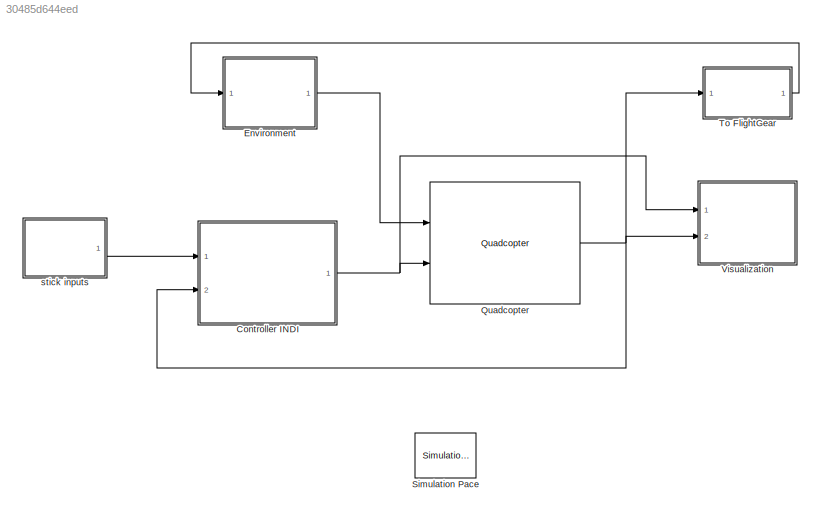
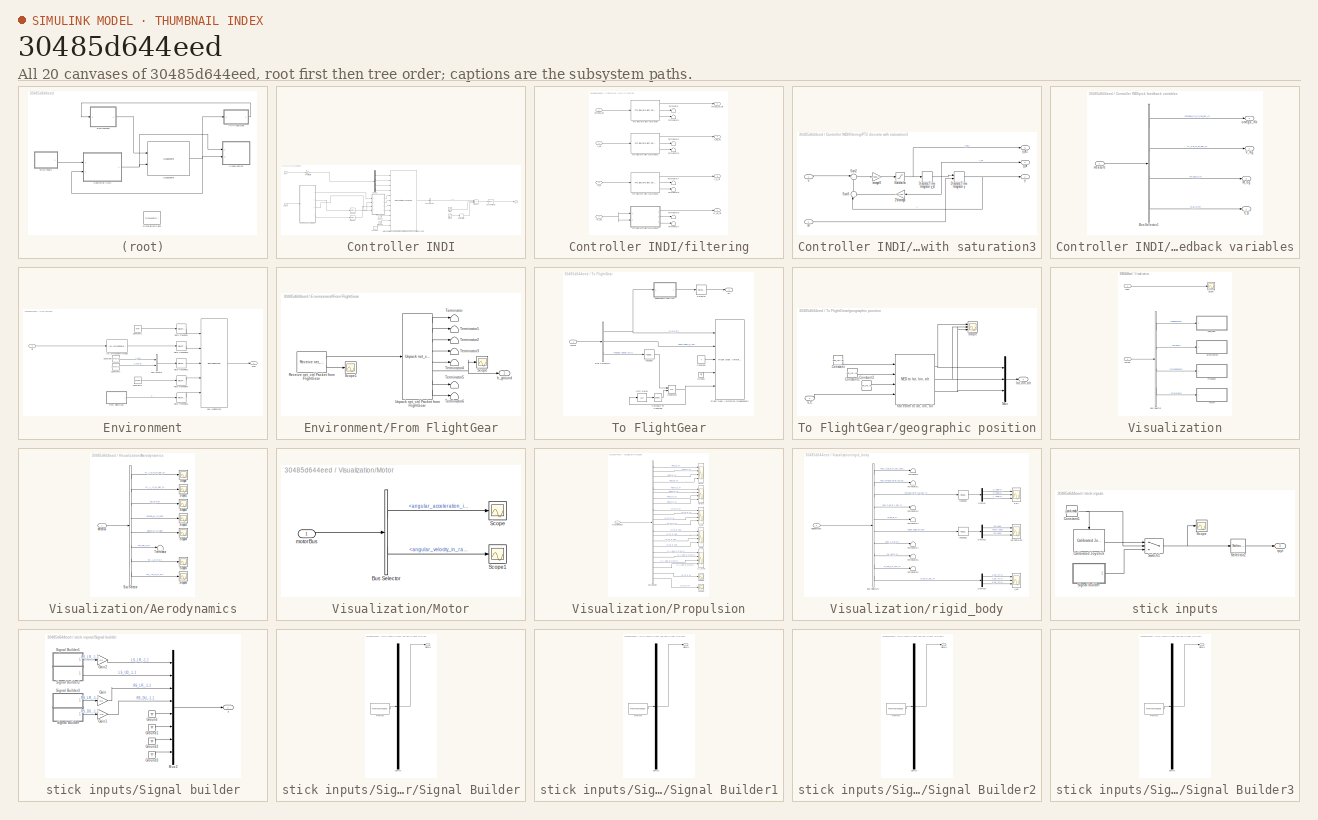
[diagram: thumbnail index - all 20 canvases of the model, root first then tree order]
MODEL slx_30485d644eed
KIND model
CONFIG AbsTol = auto
CONFIG EnableMultiTasking = on
CONFIG FixedStep = sample_time
CONFIG MaxStep = auto
CONFIG MinStep = auto
CONFIG RelTol = 1e-4
CONFIG SampleTimeConstraint = Unconstrained
CONFIG Solver = ode23
CONFIG SolverName = ode23
CONFIG StartTime = 0.0
CONFIG StopTime = 1000
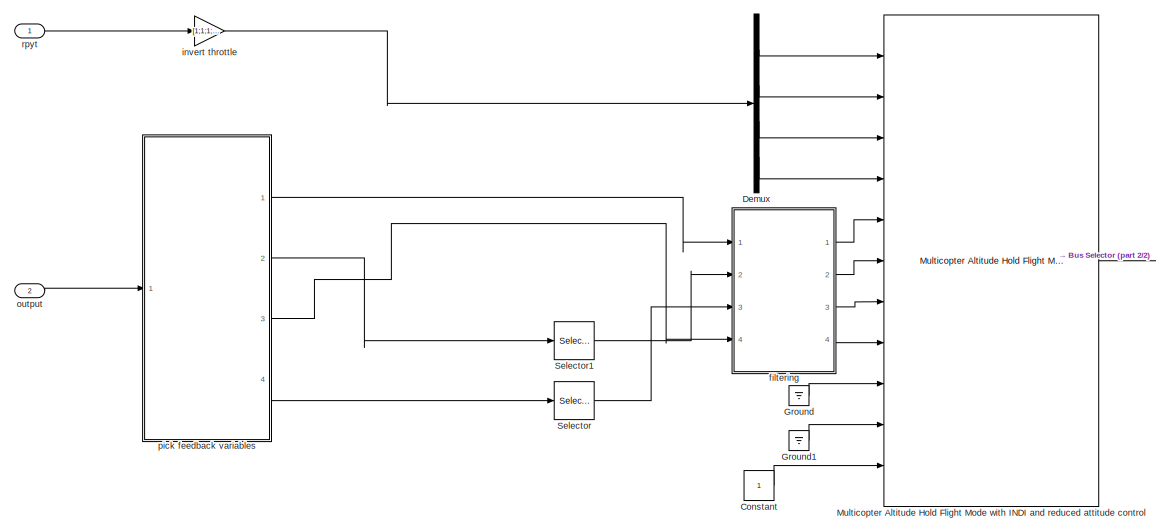
[diagram: Controller INDI - part 1/2, left side, full height]
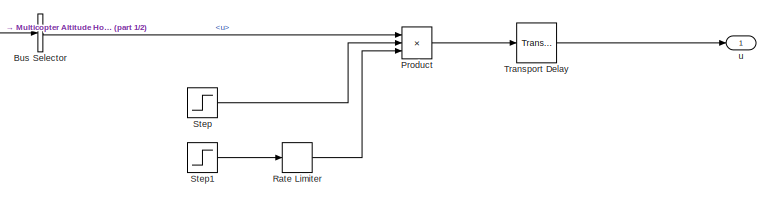
[diagram: Controller INDI - part 2/2, middle right region]
BLOCK [SubSystem] Controller INDI
  Ports = [2, 1]
  RequestExecContextInheritance = off
BLOCK [BusSelector] Controller INDI/Bus Selector
  OutputAsBus = off
  OutputSignals = u
  Ports = [1, 1]
BLOCK [Constant] Controller INDI/Constant
  OutDataTypeStr = Inherit: Inherit via back propagation
BLOCK [Demux] Controller INDI/Demux
  DisplayOption = bar
  Ports = [1, 4]
BLOCK [Ground] Controller INDI/Ground
BLOCK [Ground] Controller INDI/Ground1
BLOCK [Reference] Controller INDI/Multicopter Altitude Hold Flight Mode with INDI and reduced attitude control  REF=fmCopterAltHoldIndi_lib/Multicopter Altitude Hold Flight Mode
with INDI and reduced attitude control
  Ports = [11, 1]
  SourceBlock = fmCopterAltHoldIndi_lib/Multicopter Altitude Hold Flight Mode\nwith INDI and reduced attitude control
  SourceProductName = LADAC
BLOCK [Product] Controller INDI/Product
  InputSameDT = off
  Inputs = 3
  OutDataTypeStr = Inherit: Inherit via internal rule
  Ports = [3, 1]
  RndMeth = Floor
  SaturateOnIntegerOverflow = off
BLOCK [RateLimiter] Controller INDI/Rate Limiter
  Commented = through
  InitialCondition = 1
  SampleTimeMode = inherited
BLOCK [Selector] Controller INDI/Selector
  IndexOptions = Index vector (dialog)
  Indices = 3
  InputPortWidth = 3
  OutputSizes = 1
  Ports = [1, 1]
BLOCK [Selector] Controller INDI/Selector1
  IndexOptions = Index vector (dialog)
  Indices = [ 3]
  InputPortWidth = 3
  OutputSizes = 1
  Ports = [1, 1]
BLOCK [Step] Controller INDI/Step
  After = [1;1;1;1]
  Before = [1;1;1;1]
  SampleTime = 0
  Time = 100
BLOCK [Step] Controller INDI/Step1
  After = [1;1;1;1]
  Before = [1;1;1;1]
  SampleTime = 0
  Time = 5
BLOCK [TransportDelay] Controller INDI/Transport Delay
  DelayTime = 0.015*0
  Ports = [1, 1]
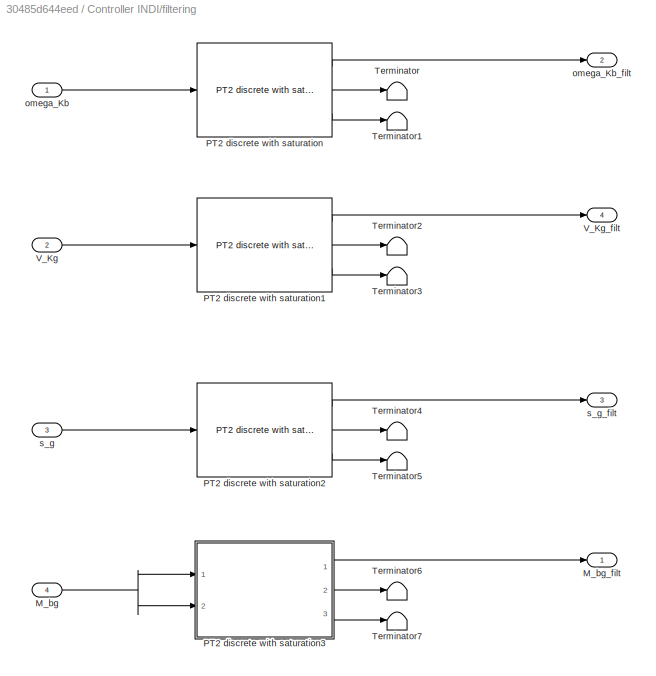
BLOCK [SubSystem] Controller INDI/filtering
  Ports = [4, 4]
  RequestExecContextInheritance = off
BLOCK [Inport] Controller INDI/filtering/M_bg
  IconDisplay = Port number
  Port = 4
BLOCK [Outport] Controller INDI/filtering/M_bg_filt
  IconDisplay = Port number
BLOCK [Reference] Controller INDI/filtering/PT2 discrete with saturation  REF=filters_lib/PT2 discrete with saturation  (lib defined in slx_a584fcc4ebc5)
  Ports = [1, 3]
  SourceBlock = filters_lib/PT2 discrete with saturation
  SourceProductName = LADAC
BLOCK [Reference] Controller INDI/filtering/PT2 discrete with saturation1  REF=filters_lib/PT2 discrete with saturation  (lib defined in slx_a584fcc4ebc5)
  Ports = [1, 3]
  SourceBlock = filters_lib/PT2 discrete with saturation
  SourceProductName = LADAC
BLOCK [Reference] Controller INDI/filtering/PT2 discrete with saturation2  REF=filters_lib/PT2 discrete with saturation  (lib defined in slx_a584fcc4ebc5)
  Ports = [1, 3]
  SourceBlock = filters_lib/PT2 discrete with saturation
  SourceProductName = LADAC
BLOCK [SubSystem] Controller INDI/filtering/PT2 discrete with saturation3
  Ports = [2, 3]
  RequestExecContextInheritance = off
BLOCK [Gain] Controller INDI/filtering/PT2 discrete with saturation3/2*d//omega
  Gain = 2*d./omega
  OutDataTypeStr = Inherit: Inherit via internal rule
  ParamDataTypeStr = Inherit: Inherit via internal rule
  SaturateOnIntegerOverflow = off
BLOCK [DiscreteIntegrator] Controller INDI/filtering/PT2 discrete with saturation3/Discrete-Time Integrator y
  ICPrevOutput = DiscIntNeverNeededParam
  ICPrevScaledInput = DiscIntNeverNeededParam
  InitialCondition = x_init
  InitialConditionSetting = Auto
  InitialConditionSource = external
  LimitOutput = on
  LowerSaturationLimit = x_min
  OutDataTypeStr = Inherit: Inherit via back propagation
  Ports = [2, 1]
  SampleTime = -1
  UpperSaturationLimit = x_max
BLOCK [DiscreteIntegrator] Controller INDI/filtering/PT2 discrete with saturation3/Discrete-Time Integrator y_dt
  ICPrevOutput = DiscIntNeverNeededParam
  ICPrevScaledInput = DiscIntNeverNeededParam
  InitialCondition = x_dt_init
  InitialConditionSetting = Auto
  LimitOutput = on
  LowerSaturationLimit = x_dt_min
  OutDataTypeStr = Inherit: Inherit via back propagation
  Ports = [1, 1]
  SampleTime = -1
  UpperSaturationLimit = x_dt_max
BLOCK [Saturate] Controller INDI/filtering/PT2 discrete with saturation3/Saturation
  InputPortMap = u0
  LowerLimit = x_dt2_min
  Ports = [1, 1]
  UpperLimit = x_dt2_max
BLOCK [Sum] Controller INDI/filtering/PT2 discrete with saturation3/Sum2
  IconShape = round
  InputSameDT = off
  Inputs = |+-
  OutDataTypeStr = Inherit: Inherit via internal rule
  Ports = [2, 1]
  SaturateOnIntegerOverflow = off
BLOCK [Sum] Controller INDI/filtering/PT2 discrete with saturation3/Sum3
  IconShape = round
  InputSameDT = off
  Inputs = |++
  OutDataTypeStr = Inherit: Inherit via internal rule
  Ports = [2, 1]
  SaturateOnIntegerOverflow = off
BLOCK [Gain] Controller INDI/filtering/PT2 discrete with saturation3/omega^2
  Gain = omega.^2
  OutDataTypeStr = Inherit: Inherit via internal rule
  ParamDataTypeStr = Inherit: Inherit via internal rule
  SaturateOnIntegerOverflow = off
BLOCK [Inport] Controller INDI/filtering/PT2 discrete with saturation3/u
  IconDisplay = Port number
BLOCK [Inport] Controller INDI/filtering/PT2 discrete with saturation3/u0
  IconDisplay = Port number
  Port = 2
BLOCK [Outport] Controller INDI/filtering/PT2 discrete with saturation3/y
  IconDisplay = Port number
BLOCK [Outport] Controller INDI/filtering/PT2 discrete with saturation3/y_dt
  IconDisplay = Port number
  Port = 2
BLOCK [Outport] Controller INDI/filtering/PT2 discrete with saturation3/y_dt2
  IconDisplay = Port number
  Port = 3
BLOCK [Terminator] Controller INDI/filtering/Terminator
BLOCK [Terminator] Controller INDI/filtering/Terminator1
BLOCK [Terminator] Controller INDI/filtering/Terminator2
BLOCK [Terminator] Controller INDI/filtering/Terminator3
BLOCK [Terminator] Controller INDI/filtering/Terminator4
BLOCK [Terminator] Controller INDI/filtering/Terminator5
BLOCK [Terminator] Controller INDI/filtering/Terminator6
BLOCK [Terminator] Controller INDI/filtering/Terminator7
BLOCK [Inport] Controller INDI/filtering/V_Kg
  IconDisplay = Port number
  Port = 2
BLOCK [Outport] Controller INDI/filtering/V_Kg_filt
  IconDisplay = Port number
  Port = 4
BLOCK [Inport] Controller INDI/filtering/omega_Kb
  IconDisplay = Port number
BLOCK [Outport] Controller INDI/filtering/omega_Kb_filt
  IconDisplay = Port number
  Port = 2
BLOCK [Inport] Controller INDI/filtering/s_g
  IconDisplay = Port number
  Port = 3
BLOCK [Outport] Controller INDI/filtering/s_g_filt
  IconDisplay = Port number
  Port = 3
BLOCK [Gain] Controller INDI/invert throttle
  Commented = through
  Gain = [1;1;1;-1]
  OutDataTypeStr = Inherit: Inherit via internal rule
  ParamDataTypeStr = Inherit: Inherit via internal rule
  SaturateOnIntegerOverflow = off
BLOCK [Inport] Controller INDI/output
  IconDisplay = Port number
  Port = 2
BLOCK [SubSystem] Controller INDI/pick feedback variables
  Ports = [1, 4]
  RequestExecContextInheritance = off
BLOCK [BusSelector] Controller INDI/pick feedback variables/Bus Selector1
  OutputAsBus = off
  OutputSignals = rigidBodyBus.omega_Kb_in_rad_per_s,rigidBodyBus.V_Kg_in_m_per_s,rigidBodyBus.M_bg_in_1,rigidBodyBus.s_g_in_m
  Ports = [1, 4]
BLOCK [Outport] Controller INDI/pick feedback variables/M_bg
  IconDisplay = Port number
  Port = 3
BLOCK [Outport] Controller INDI/pick feedback variables/V_Kg
  IconDisplay = Port number
  Port = 2
BLOCK [Inport] Controller INDI/pick feedback variables/measure
  IconDisplay = Port number
BLOCK [Outport] Controller INDI/pick feedback variables/omega_Kb
  IconDisplay = Port number
BLOCK [Outport] Controller INDI/pick feedback variables/s_g
  IconDisplay = Port number
  Port = 4
BLOCK [Inport] Controller INDI/rpyt
  IconDisplay = Port number
  OutDataTypeStr = double
  SamplingMode = Sample based
  SignalType = real
BLOCK [Outport] Controller INDI/u
  IconDisplay = Port number
  OutDataTypeStr = double
  PortDimensions = 4
  SamplingMode = Sample based
  SignalType = real
BLOCK [SubSystem] Environment
  Ports = [1, 1]
  RequestExecContextInheritance = off
BLOCK [BusAssignment] Environment/Bus Assignment
  AssignedSignals = atmosphere,wind,g,alt_ground
  Ports = [5, 1]
BLOCK [BusCreator] Environment/Bus Creator
  DisplayOption = bar
  InheritFromInputs = on
  Inputs = 2
  Ports = [2, 1]
BLOCK [Constant] Environment/Constant
  Value = zeros(3,1)
BLOCK [Constant] Environment/Constant1
  OutDataTypeStr = Bus: envirBus
  Value = envir
BLOCK [Constant] Environment/Constant2
  Value = zeros(3,1)
BLOCK [Constant] Environment/Constant3
  Value = envir.g
BLOCK [SubSystem] Environment/From FlightGear
  Ports = [0, 1]
  RequestExecContextInheritance = off
BLOCK [Reference] Environment/From FlightGear/Receive net_ctrl Packet from FlightGear  REF=aerolibfltsims/Receive net_ctrl
Packet from FlightGear
  AttributesFormatString = Version Selected:\n%<FlightGearVersion>
  Ports = [0, 2]
  SourceBlock = aerolibfltsims/Receive net_ctrl\nPacket from FlightGear
  SourceProductBaseCode = AE
  SourceProductName = Aerospace Blockset
  SourceType = FlightGearReceiveNetCtrl
BLOCK [Scope] Environment/From FlightGear/Scope
  Floating = off
  NumInputPorts = 1
  Ports = [1]
  ScopeSpecificationString = Simulink.scopes.TimeScopeBlockCfg('CurrentConfiguration', extmgr.ConfigurationSet(extmgr.Configuration('Core','General UI',true),extmgr.Configuration('Core','Source UI',true),extmgr.Configuration('Sources','WiredSimulink',true,'DataLoggingVariableName','ScopeData1'),extmgr.Configuration('Visuals','Time Domain',true,'SerializedDisplays',{struct('MinYLimReal','4.70605','MaxYLimReal','6.70605','YLabe...<+1441ch>
BLOCK [Scope] Environment/From FlightGear/Scope1
  Floating = off
  NumInputPorts = 1
  Ports = [1]
  ScopeSpecificationString = Simulink.scopes.TimeScopeBlockCfg('CurrentConfiguration', extmgr.ConfigurationSet(extmgr.Configuration('Core','General UI',true),extmgr.Configuration('Core','Source UI',true),extmgr.Configuration('Sources','WiredSimulink',true,'DataLoggingVariableName','ScopeData4'),extmgr.Configuration('Visuals','Time Domain',true,'SerializedDisplays',{struct('MinYLimReal','644.00000','MaxYLimReal','844.00000','Y...<+1439ch>
BLOCK [Terminator] Environment/From FlightGear/Terminator
BLOCK [Terminator] Environment/From FlightGear/Terminator1
BLOCK [Terminator] Environment/From FlightGear/Terminator2
BLOCK [Terminator] Environment/From FlightGear/Terminator3
BLOCK [Terminator] Environment/From FlightGear/Terminator4
BLOCK [Terminator] Environment/From FlightGear/Terminator5
BLOCK [Terminator] Environment/From FlightGear/Terminator6
BLOCK [Reference] Environment/From FlightGear/Unpack net_ctrl Packet from FlightGear  REF=aerolibfltsims/Unpack
net_ctrl Packet
from FlightGear
  AttributesFormatString = Version Selected: %<FlightGearVersion>
  Ports = [1, 8]
  SourceBlock = aerolibfltsims/Unpack\nnet_ctrl Packet\nfrom FlightGear
  SourceProductBaseCode = AE
  SourceProductName = Aerospace Blockset
  SourceType = FlightGearUnpackNetCtrl
BLOCK [Outport] Environment/From FlightGear/h_ground
  IconDisplay = Port number
BLOCK [Reference] Environment/ISA Atmosphere Model  REF=atmosphere_lib/ISA Atmosphere Model  (lib defined in slx_398a0eb2fa35)
  Ports = [1, 1]
  SourceBlock = atmosphere_lib/ISA Atmosphere Model
  SourceProductName = LADAC
  SourceType = SubSystem
BLOCK [RateTransition] Environment/Rate Transition
BLOCK [RateTransition] Environment/Rate Transition1
BLOCK [RateTransition] Environment/Rate Transition2
BLOCK [RateTransition] Environment/Rate Transition3
BLOCK [RateTransition] Environment/Rate Transition4
BLOCK [Inport] Environment/alt
  IconDisplay = Port number
BLOCK [Outport] Environment/envir
  IconDisplay = Port number
BLOCK [Reference] Quadcopter  REF=quadcopter_lib/Quadcopter  (lib defined in slx_bd6b051694d1)
  Ports = [2, 1]
  SourceBlock = quadcopter_lib/Quadcopter
  SourceProductName = LADAC
BLOCK [Reference] Simulation Pace  REF=aerolibanimutils/Simulation Pace
  AttributesFormatString = %<SleepMode>\n%<SimulationPace> sec/sec
  Ports = []
  SourceBlock = aerolibanimutils/Simulation Pace
  SourceProductBaseCode = AE
  SourceProductName = Aerospace Blockset
  SourceType = Simulation Pace
BLOCK [SubSystem] To FlightGear
  Ports = [1, 1]
  RequestExecContextInheritance = off
BLOCK [BusSelector] To FlightGear/Bus Selector1
  OutputAsBus = off
  OutputSignals = rigidBodyBus.s_g_in_m,rigidBodyBus.EulerAngles_in_rad,motorBus.angular_velocity_in_rad_per_s
  Ports = [1, 3]
BLOCK [Reference] To FlightGear/Compare To Constant  REF=simulink/Logic and Bit
Operations/Compare
To Constant
  Ports = [1, 1]
  SourceBlock = simulink/Logic and Bit\nOperations/Compare\nTo Constant
  SourceProductBaseCode = SL
  SourceProductName = Simulink
  SourceType = Compare To Constant
BLOCK [Constant] To FlightGear/Constant
  Value = 4
BLOCK [Reference] To FlightGear/Flight Gear Animation (Quadcopter)  REF=flightgear_visualization_lib/Flight Gear Animation (Quadcopter)  (lib defined in slx_722f04e3a3fc)
  Ports = [5]
  SourceBlock = flightgear_visualization_lib/Flight Gear Animation (Quadcopter)
  SourceProductName = LADAC
BLOCK [Ground] To FlightGear/Ground
BLOCK [Integrator] To FlightGear/Integrator
  ExternalReset = rising
  Ports = [2, 1]
BLOCK [Selector] To FlightGear/Selector
  IndexOptions = Index vector (dialog)
  Indices = 3
  InputPortWidth = 3
  OutputSizes = 1
  Ports = [1, 1]
BLOCK [UnitDelay] To FlightGear/Unit Delay
  InputProcessing = Elements as channels (sample based)
  SampleTime = -1
BLOCK [Outport] To FlightGear/alt
  IconDisplay = Port number
BLOCK [SubSystem] To FlightGear/geographic position
  Ports = [1, 1]
  RequestExecContextInheritance = off
BLOCK [Constant] To FlightGear/geographic position/Constant
  Value = pos_ref.lat
BLOCK [Constant] To FlightGear/geographic position/Constant1
  Value = pos_ref.lon
BLOCK [Constant] To FlightGear/geographic position/Constant2
  Value = pos_ref.alt
BLOCK [Mux] To FlightGear/geographic position/Mux
  DisplayOption = bar
  Inputs = 3
  Ports = [3, 1]
BLOCK [Scope] To FlightGear/geographic position/Scope
  Floating = off
  NumInputPorts = 3
  Ports = [3]
  ScopeSpecificationString = Simulink.scopes.TimeScopeBlockCfg('CurrentConfiguration', extmgr.ConfigurationSet(extmgr.Configuration('Core','General UI',true),extmgr.Configuration('Core','Source UI',true),extmgr.Configuration('Sources','WiredSimulink',true,'DataLoggingVariableName','ScopeData6'),extmgr.Configuration('Visuals','Time Domain',true,'SerializedDisplays',{struct('MinYLimReal','4.04731','MaxYLimReal','63.57425','YLab...<+1508ch>
BLOCK [Reference] To FlightGear/geographic position/flat earth to lat, lon, alt  REF=axes_transformation_lib/NED to lat, lon, alt  (lib defined in slx_69e2413c78c0)
  Ports = [4, 3]
  SourceBlock = axes_transformation_lib/NED to lat, lon, alt
  SourceProductName = LADAC
  SourceType = SubSystem
BLOCK [Outport] To FlightGear/geographic position/lat,lon,alt
  IconDisplay = Port number
BLOCK [Inport] To FlightGear/geographic position/s_E
  IconDisplay = Port number
BLOCK [Inport] To FlightGear/output
  IconDisplay = Port number
BLOCK [Reference] To FlightGear/rad2deg  REF=unit_conversions_lib/rad2deg  (lib defined in slx_ae2855d4d91e)
  Ports = [1, 1]
  SourceBlock = unit_conversions_lib/rad2deg
  SourceProductName = LADAC
BLOCK [SubSystem] Visualization
  Ports = [2]
  RequestExecContextInheritance = off
BLOCK [SubSystem] Visualization/Aerodynamics
  Ports = [1]
  RequestExecContextInheritance = off
BLOCK [BusSelector] Visualization/Aerodynamics/Bus Selector
  OutputAsBus = off
  OutputSignals = V_Ab_in_m_per_s,V_A_in_m_per_s,q_in_Pa,angles.alpha_M_in_rad,angles.beta_M_in_rad,M_ba_in_1,R_Ab_in_N,Q_Ab_in_N_m
  Ports = [1, 8]
BLOCK [Scope] Visualization/Aerodynamics/Scope
  Floating = off
  NumInputPorts = 1
  Ports = [1]
  ScopeSpecificationString = Simulink.scopes.TimeScopeBlockCfg('CurrentConfiguration', extmgr.ConfigurationSet(extmgr.Configuration('Core','General UI',true),extmgr.Configuration('Core','Source UI',true),extmgr.Configuration('Sources','WiredSimulink',true,'DataLoggingVariableName','ScopeData1'),extmgr.Configuration('Visuals','Time Domain',true),extmgr.Configuration('Tools','Plot Navigation',true),extmgr.Configuration('Tools',...<+40ch>
BLOCK [Scope] Visualization/Aerodynamics/Scope1
  Floating = off
  NumInputPorts = 1
  Ports = [1]
  ScopeSpecificationString = Simulink.scopes.TimeScopeBlockCfg('CurrentConfiguration', extmgr.ConfigurationSet(extmgr.Configuration('Core','General UI',true),extmgr.Configuration('Core','Source UI',true),extmgr.Configuration('Sources','WiredSimulink',true,'DataLoggingVariableName','ScopeData2'),extmgr.Configuration('Visuals','Time Domain',true,'SerializedDisplays',{struct('MinYLimReal','-0.81438','MaxYLimReal','7.32941','YLab...<+1419ch>
BLOCK [Scope] Visualization/Aerodynamics/Scope2
  Floating = off
  NumInputPorts = 1
  Ports = [1]
  ScopeSpecificationString = Simulink.scopes.TimeScopeBlockCfg('CurrentConfiguration', extmgr.ConfigurationSet(extmgr.Configuration('Core','General UI',true),extmgr.Configuration('Core','Source UI',true),extmgr.Configuration('Sources','WiredSimulink',true,'DataLoggingVariableName','ScopeData3'),extmgr.Configuration('Visuals','Time Domain',true),extmgr.Configuration('Tools','Plot Navigation',true),extmgr.Configuration('Tools',...<+40ch>
BLOCK [Scope] Visualization/Aerodynamics/Scope3
  Floating = off
  NumInputPorts = 1
  Ports = [1]
  ScopeSpecificationString = Simulink.scopes.TimeScopeBlockCfg('CurrentConfiguration', extmgr.ConfigurationSet(extmgr.Configuration('Core','General UI',true),extmgr.Configuration('Core','Source UI',true),extmgr.Configuration('Sources','WiredSimulink',true,'DataLoggingVariableName','ScopeData4'),extmgr.Configuration('Visuals','Time Domain',true,'SerializedDisplays',{struct('MinYLimReal','-1.9635','MaxYLimReal','1.9635','YLabel...<+1413ch>
BLOCK [Scope] Visualization/Aerodynamics/Scope4
  Floating = off
  NumInputPorts = 1
  Ports = [1]
  ScopeSpecificationString = Simulink.scopes.TimeScopeBlockCfg('CurrentConfiguration', extmgr.ConfigurationSet(extmgr.Configuration('Core','General UI',true),extmgr.Configuration('Core','Source UI',true),extmgr.Configuration('Sources','WiredSimulink',true,'DataLoggingVariableName','ScopeData5'),extmgr.Configuration('Visuals','Time Domain',true,'SerializedDisplays',{struct('MinYLimReal','-3.92698','MaxYLimReal','3.92696','YLab...<+1418ch>
BLOCK [Scope] Visualization/Aerodynamics/Scope5
  Floating = off
  NumInputPorts = 1
  Ports = [1]
  ScopeSpecificationString = Simulink.scopes.TimeScopeBlockCfg('CurrentConfiguration', extmgr.ConfigurationSet(extmgr.Configuration('Core','General UI',true),extmgr.Configuration('Core','Source UI',true),extmgr.Configuration('Sources','WiredSimulink',true,'DataLoggingVariableName','ScopeData6'),extmgr.Configuration('Visuals','Time Domain',true,'SerializedDisplays',{struct('MinYLimReal','-0.83398','MaxYLimReal','0.42106','YLab...<+1516ch>
BLOCK [Scope] Visualization/Aerodynamics/Scope6
  Floating = off
  NumInputPorts = 1
  Ports = [1]
  ScopeSpecificationString = Simulink.scopes.TimeScopeBlockCfg('CurrentConfiguration', extmgr.ConfigurationSet(extmgr.Configuration('Core','General UI',true),extmgr.Configuration('Core','Source UI',true),extmgr.Configuration('Sources','WiredSimulink',true,'DataLoggingVariableName','ScopeData7'),extmgr.Configuration('Visuals','Time Domain',true,'SerializedDisplays',{struct('MinYLimReal','-0.00000000014','MaxYLimReal','0.000000...<+1502ch>
BLOCK [Terminator] Visualization/Aerodynamics/Terminator
BLOCK [Inport] Visualization/Aerodynamics/aeroBus
  IconDisplay = Port number
BLOCK [BusSelector] Visualization/Bus Selector
  OutputAsBus = off
  OutputSignals = rigidBodyBus,aeroBus,propulsionBus,motorBus
  Ports = [1, 4]
BLOCK [SubSystem] Visualization/Motor
  Ports = [1]
  RequestExecContextInheritance = off
BLOCK [BusSelector] Visualization/Motor/Bus Selector
  OutputAsBus = off
  OutputSignals = angular_acceleration_in_rad_per_square_s,angular_velocity_in_rad_per_s
  Ports = [1, 2]
BLOCK [Scope] Visualization/Motor/Scope
  Floating = off
  NumInputPorts = 1
  Ports = [1]
  ScopeSpecificationString = Simulink.scopes.TimeScopeBlockCfg('CurrentConfiguration', extmgr.ConfigurationSet(extmgr.Configuration('Core','General UI',true),extmgr.Configuration('Core','Source UI',true),extmgr.Configuration('Sources','WiredSimulink',true,'DataLoggingVariableName','ScopeData15'),extmgr.Configuration('Visuals','Time Domain',true,'SerializedDisplays',{struct('MinYLimReal','-14601.27633','MaxYLimReal','1999.6683...<+1596ch>
BLOCK [Scope] Visualization/Motor/Scope1
  Floating = off
  NumInputPorts = 1
  Ports = [1]
  ScopeSpecificationString = Simulink.scopes.TimeScopeBlockCfg('CurrentConfiguration', extmgr.ConfigurationSet(extmgr.Configuration('Core','General UI',true),extmgr.Configuration('Core','Source UI',true),extmgr.Configuration('Sources','WiredSimulink',true,'DataLoggingVariableName','ScopeData16'),extmgr.Configuration('Visuals','Time Domain',true,'SerializedDisplays',{struct('MinYLimReal','-86.18034','MaxYLimReal','775.62302','...<+1610ch>
BLOCK [Inport] Visualization/Motor/motorBus
  IconDisplay = Port number
BLOCK [SubSystem] Visualization/Propulsion
  Ports = [1]
  RequestExecContextInheritance = off
BLOCK [BusSelector] Visualization/Propulsion/Bus Selector
  OutputAsBus = off
  OutputSignals = propeller_1.thrust_in_N,propeller_2.thrust_in_N,propeller_3.thrust_in_N,propeller_4.thrust_in_N,propeller_1.torque_in_N,propeller_2.torque_in_N,propeller_3.torque_in_N,propeller_4.torque_in_N,propeller_1.R_Fb_in_N,propeller_2.R_Fb_in_N,propeller_3.R_Fb_in_N,propeller_4.R_Fb_in_N,propeller_1.Q_Fb_in_Nm,propeller_2.Q_Fb_in_Nm,propeller_3.Q_Fb_in_Nm,propeller_4.Q_Fb_in_Nm,propeller_1.V_A_prop_in_m_pe...<+119ch>
  Ports = [1, 22]
BLOCK [Scope] Visualization/Propulsion/Q_Fb
  Floating = off
  NumInputPorts = 4
  Ports = [4]
  ScopeSpecificationString = Simulink.scopes.TimeScopeBlockCfg('CurrentConfiguration', extmgr.ConfigurationSet(extmgr.Configuration('Core','General UI',true),extmgr.Configuration('Core','Source UI',true),extmgr.Configuration('Sources','WiredSimulink',true,'DataLoggingVariableName','ScopeData11'),extmgr.Configuration('Visuals','Time Domain',true,'SerializedDisplays',{struct('MinYLimReal','-0.22601','MaxYLimReal','-0.19277','YL...<+1564ch>
BLOCK [Scope] Visualization/Propulsion/R_Fb
  Floating = off
  NumInputPorts = 4
  Ports = [4]
  ScopeSpecificationString = Simulink.scopes.TimeScopeBlockCfg('CurrentConfiguration', extmgr.ConfigurationSet(extmgr.Configuration('Core','General UI',true),extmgr.Configuration('Core','Source UI',true),extmgr.Configuration('Sources','WiredSimulink',true,'DataLoggingVariableName','ScopeData10'),extmgr.Configuration('Visuals','Time Domain',true,'SerializedDisplays',{struct('MinYLimReal','-8.5339','MaxYLimReal','0.94821','YLab...<+1626ch>
BLOCK [Scope] Visualization/Propulsion/Scope5
  Floating = off
  NumInputPorts = 1
  Ports = [1]
  ScopeSpecificationString = Simulink.scopes.TimeScopeBlockCfg('CurrentConfiguration', extmgr.ConfigurationSet(extmgr.Configuration('Core','General UI',true),extmgr.Configuration('Core','Source UI',true),extmgr.Configuration('Sources','WiredSimulink',true,'DataLoggingVariableName','ScopeData13'),extmgr.Configuration('Visuals','Time Domain',true,'SerializedDisplays',{struct('MinYLimReal','-34.1356','MaxYLimReal','3.79284','YLa...<+1498ch>
BLOCK [Scope] Visualization/Propulsion/Scope6
  Floating = off
  NumInputPorts = 1
  Ports = [1]
  ScopeSpecificationString = Simulink.scopes.TimeScopeBlockCfg('CurrentConfiguration', extmgr.ConfigurationSet(extmgr.Configuration('Core','General UI',true),extmgr.Configuration('Core','Source UI',true),extmgr.Configuration('Sources','WiredSimulink',true,'DataLoggingVariableName','ScopeData14'),extmgr.Configuration('Visuals','Time Domain',true,'SerializedDisplays',{struct('MinYLimReal','-0.90403','MaxYLimReal','-0.77107','YL...<+1407ch>
BLOCK [Scope] Visualization/Propulsion/V_A_prop
  Floating = off
  NumInputPorts = 4
  Ports = [4]
  ScopeSpecificationString = Simulink.scopes.TimeScopeBlockCfg('CurrentConfiguration', extmgr.ConfigurationSet(extmgr.Configuration('Core','General UI',true),extmgr.Configuration('Core','Source UI',true),extmgr.Configuration('Sources','WiredSimulink',true,'DataLoggingVariableName','ScopeData12'),extmgr.Configuration('Visuals','Time Domain',true,'SerializedDisplays',{struct('MinYLimReal','-0.02599','MaxYLimReal','0.06439','YLa...<+1693ch>
BLOCK [Inport] Visualization/Propulsion/propulsionBus
  IconDisplay = Port number
BLOCK [Scope] Visualization/Propulsion/thrust
  Floating = off
  NumInputPorts = 4
  Ports = [4]
  ScopeSpecificationString = Simulink.scopes.TimeScopeBlockCfg('CurrentConfiguration', extmgr.ConfigurationSet(extmgr.Configuration('Core','General UI',true),extmgr.Configuration('Core','Source UI',true),extmgr.Configuration('Sources','WiredSimulink',true,'DataLoggingVariableName','ScopeData8'),extmgr.Configuration('Visuals','Time Domain',true,'SerializedDisplays',{struct('MinYLimReal','-0.01333','MaxYLimReal','0.11998','YLab...<+1420ch>
BLOCK [Scope] Visualization/Propulsion/torque
  Floating = off
  NumInputPorts = 4
  Ports = [4]
  ScopeSpecificationString = Simulink.scopes.TimeScopeBlockCfg('CurrentConfiguration', extmgr.ConfigurationSet(extmgr.Configuration('Core','General UI',true),extmgr.Configuration('Core','Source UI',true),extmgr.Configuration('Sources','WiredSimulink',true,'DataLoggingVariableName','ScopeData9'),extmgr.Configuration('Visuals','Time Domain',true,'SerializedDisplays',{struct('MinYLimReal','-0.00039','MaxYLimReal','0.00353','YLab...<+1445ch>
BLOCK [Scope] Visualization/Scope
  Floating = off
  NumInputPorts = 1
  Ports = [1]
  ScopeSpecificationString = Simulink.scopes.TimeScopeBlockCfg('CurrentConfiguration', extmgr.ConfigurationSet(extmgr.Configuration('Core','General UI',true),extmgr.Configuration('Core','Source UI',true),extmgr.Configuration('Sources','WiredSimulink',true,'DataLoggingVariableName','ScopeData1'),extmgr.Configuration('Visuals','Time Domain',true,'SerializedDisplays',{struct('MinYLimReal','-0.06828','MaxYLimReal','0.61455','YLab...<+1689ch>
BLOCK [Inport] Visualization/input
  IconDisplay = Port number
BLOCK [Inport] Visualization/output
  IconDisplay = Port number
  Port = 2
BLOCK [SubSystem] Visualization/rigid_body
  Ports = [1]
  RequestExecContextInheritance = off
BLOCK [BusSelector] Visualization/rigid_body/Bus Selector1
  OutputAsBus = off
  OutputSignals = dot_V_Kb_in_m_per_square_s,dot_omega_Kb_in_rad_per_square_s,omega_Kb_in_rad_per_s,dot_q_bg_in_1_per_s,q_bg_in_1,EulerAngles_in_rad,dot_s_g_in_m,M_bg_in_1,V_Kg_in_m_per_s,V_Kb_m_per_s
  Ports = [1, 10]
BLOCK [Demux] Visualization/rigid_body/Demux
  DisplayOption = bar
  Outputs = 3
  Ports = [1, 3]
BLOCK [Demux] Visualization/rigid_body/Demux1
  DisplayOption = bar
  Outputs = 3
  Ports = [1, 3]
BLOCK [Demux] Visualization/rigid_body/Demux2
  DisplayOption = bar
  Outputs = 3
  Ports = [1, 3]
BLOCK [Scope] Visualization/rigid_body/Phi,Theta,Psi
  Floating = off
  NumInputPorts = 3
  Ports = [3]
  ScopeSpecificationString = Simulink.scopes.TimeScopeBlockCfg('CurrentConfiguration', extmgr.ConfigurationSet(extmgr.Configuration('Core','General UI',true),extmgr.Configuration('Core','Source UI',true),extmgr.Configuration('Sources','WiredSimulink',true,'DataLoggingVariableName','ScopeAngles','DataLoggingSaveFormat','StructureWithTime'),extmgr.Configuration('Visuals','Time Domain',true,'SerializedDisplays',{struct('MinYLimR...<+1572ch>
BLOCK [Terminator] Visualization/rigid_body/Terminator
BLOCK [Terminator] Visualization/rigid_body/Terminator1
BLOCK [Terminator] Visualization/rigid_body/Terminator2
BLOCK [Terminator] Visualization/rigid_body/Terminator3
BLOCK [Terminator] Visualization/rigid_body/Terminator4
BLOCK [Terminator] Visualization/rigid_body/Terminator5
BLOCK [Terminator] Visualization/rigid_body/Terminator6
BLOCK [Scope] Visualization/rigid_body/V_Kb
  Floating = off
  NumInputPorts = 3
  Ports = [3]
  ScopeSpecificationString = Simulink.scopes.TimeScopeBlockCfg('CurrentConfiguration', extmgr.ConfigurationSet(extmgr.Configuration('Core','General UI',true),extmgr.Configuration('Core','Source UI',true),extmgr.Configuration('Sources','WiredSimulink',true,'DataLoggingVariableName','ScopeV','DataLoggingSaveFormat','StructureWithTime'),extmgr.Configuration('Visuals','Time Domain',true,'SerializedDisplays',{struct('MinYLimReal',...<+1525ch>
BLOCK [Scope] Visualization/rigid_body/p,q,r
  Floating = off
  NumInputPorts = 3
  Ports = [3]
  ScopeSpecificationString = Simulink.scopes.TimeScopeBlockCfg('CurrentConfiguration', extmgr.ConfigurationSet(extmgr.Configuration('Core','General UI',true),extmgr.Configuration('Core','Source UI',true),extmgr.Configuration('Sources','WiredSimulink',true,'DataLoggingVariableName','ScopeRates','DataLoggingSaveFormat','StructureWithTime'),extmgr.Configuration('Visuals','Time Domain',true,'SerializedDisplays',{struct('MinYLimRe...<+1567ch>
BLOCK [Reference] Visualization/rigid_body/rad2deg  REF=unit_conversions_lib/rad2deg  (lib defined in slx_ae2855d4d91e)
  Ports = [1, 1]
  SourceBlock = unit_conversions_lib/rad2deg
  SourceProductName = LADAC
BLOCK [Reference] Visualization/rigid_body/rad2deg1  REF=unit_conversions_lib/rad2deg  (lib defined in slx_ae2855d4d91e)
  Ports = [1, 1]
  SourceBlock = unit_conversions_lib/rad2deg
  SourceProductName = LADAC
BLOCK [Inport] Visualization/rigid_body/rigidBodyBus
  IconDisplay = Port number
BLOCK [SubSystem] stick inputs
  Ports = [0, 1]
  RequestExecContextInheritance = off
BLOCK [Reference] stick inputs/Calibrated Joystick  REF=joystick_lib/Calibrated Joystick  (lib defined in slx_c24d1f50ed98)
  Ports = [0, 1, 1]
  SourceBlock = joystick_lib/Calibrated Joystick
  SourceProductName = LADAC
BLOCK [Constant] stick inputs/Constant1
  Value = jystck.enable
BLOCK [Scope] stick inputs/Scope
  Floating = off
  NumInputPorts = 1
  Ports = [1]
  ScopeSpecificationString = Simulink.scopes.TimeScopeBlockCfg('CurrentConfiguration', extmgr.ConfigurationSet(extmgr.Configuration('Core','General UI',true),extmgr.Configuration('Core','Source UI',true),extmgr.Configuration('Sources','WiredSimulink',true,'DataLoggingVariableName','ScopeData1'),extmgr.Configuration('Visuals','Time Domain',true,'SerializedDisplays',{struct('MinYLimReal','-1.24813','MaxYLimReal','1.23318','YLab...<+1538ch>
BLOCK [Selector] stick inputs/Selector2
  IndexOptions = Index vector (dialog)
  Indices = [1,2,3,4]
  InputPortWidth = 8
  OutputSizes = 1
  Ports = [1, 1]
BLOCK [SubSystem] stick inputs/Signal builder
  Ports = [0, 1]
  RequestExecContextInheritance = off
BLOCK [Gain] stick inputs/Signal builder/Gain
  Gain = 0.5
  OutDataTypeStr = Inherit: Inherit via internal rule
  ParamDataTypeStr = Inherit: Inherit via internal rule
  SaturateOnIntegerOverflow = off
BLOCK [Gain] stick inputs/Signal builder/Gain1
  Gain = -0.5
  OutDataTypeStr = Inherit: Inherit via internal rule
  ParamDataTypeStr = Inherit: Inherit via internal rule
  SaturateOnIntegerOverflow = off
BLOCK [Gain] stick inputs/Signal builder/Gain2
  Gain = 0.5
  OutDataTypeStr = Inherit: Inherit via internal rule
  ParamDataTypeStr = Inherit: Inherit via internal rule
  SaturateOnIntegerOverflow = off
BLOCK [Ground] stick inputs/Signal builder/Ground
BLOCK [Ground] stick inputs/Signal builder/Ground1
BLOCK [Ground] stick inputs/Signal builder/Ground2
BLOCK [Ground] stick inputs/Signal builder/Ground3
BLOCK [Mux] stick inputs/Signal builder/Mux2
  DisplayOption = bar
  Inputs = 8
  Ports = [8, 1]
BLOCK [SubSystem] stick inputs/Signal builder/Signal Builder
  ClipboardFcn = sigbuilder_block('clipboard');
  CloseFcn = sigbuilder_block('close');
  ContinueFcn = sigbuilder_block('continue');
  CopyFcn = sigbuilder_block('copy');
  DeleteFcn = sigbuilder_block('delete');
  LoadFcn = sigbuilder_block('load');
  MaskHideContents = on
  ModelCloseFcn = sigbuilder_block('modelClose');
  NameChangeFcn = sigbuilder_block('namechange');
  OpenFcn = sigbuilder_block('open',[426 42.75 821.25 509.25 ]);
  PauseFcn = sigbuilder_block('pause');
  Ports = [0, 1]
  PreSaveFcn = sigbuilder_block('preSave');
  RequestExecContextInheritance = off
  StartFcn = sigbuilder_block('start');
  StopFcn = sigbuilder_block('stop');
  Tag = STV Subsys
BLOCK [Demux] stick inputs/Signal builder/Signal Builder/Demux
  Outputs = 1
  Ports = [1, 1]
  Tag = STV Demux
BLOCK [FromWorkspace] stick inputs/Signal builder/Signal Builder/FromWs
  SampleTime = 0
  Tag = STV FromWs
  VariableName = tuvar
  ZeroCross = on
BLOCK [Outport] stick inputs/Signal builder/Signal Builder/Signal 1
  IconDisplay = Port number
  Tag = STV Outport
BLOCK [SubSystem] stick inputs/Signal builder/Signal Builder1
  ClipboardFcn = sigbuilder_block('clipboard');
  CloseFcn = sigbuilder_block('close');
  ContinueFcn = sigbuilder_block('continue');
  CopyFcn = sigbuilder_block('copy');
  DeleteFcn = sigbuilder_block('delete');
  LoadFcn = sigbuilder_block('load');
  MaskHideContents = on
  ModelCloseFcn = sigbuilder_block('modelClose');
  NameChangeFcn = sigbuilder_block('namechange');
  OpenFcn = sigbuilder_block('open',[429.75 123 565.5 444.75 ]);
  PauseFcn = sigbuilder_block('pause');
  Ports = [0, 1]
  PreSaveFcn = sigbuilder_block('preSave');
  RequestExecContextInheritance = off
  StartFcn = sigbuilder_block('start');
  StopFcn = sigbuilder_block('stop');
  Tag = STV Subsys
BLOCK [Demux] stick inputs/Signal builder/Signal Builder1/Demux
  Outputs = 1
  Ports = [1, 1]
  Tag = STV Demux
BLOCK [FromWorkspace] stick inputs/Signal builder/Signal Builder1/FromWs
  SampleTime = 0
  Tag = STV FromWs
  VariableName = tuvar
  ZeroCross = on
BLOCK [Outport] stick inputs/Signal builder/Signal Builder1/Signal 1
  IconDisplay = Port number
  Tag = STV Outport
BLOCK [SubSystem] stick inputs/Signal builder/Signal Builder2
  ClipboardFcn = sigbuilder_block('clipboard');
  CloseFcn = sigbuilder_block('close');
  ContinueFcn = sigbuilder_block('continue');
  CopyFcn = sigbuilder_block('copy');
  DeleteFcn = sigbuilder_block('delete');
  LoadFcn = sigbuilder_block('load');
  MaskHideContents = on
  ModelCloseFcn = sigbuilder_block('modelClose');
  NameChangeFcn = sigbuilder_block('namechange');
  OpenFcn = sigbuilder_block('open',[411 0 603 557.25 ]);
  PauseFcn = sigbuilder_block('pause');
  Ports = [0, 1]
  PreSaveFcn = sigbuilder_block('preSave');
  RequestExecContextInheritance = off
  StartFcn = sigbuilder_block('start');
  StopFcn = sigbuilder_block('stop');
  Tag = STV Subsys
BLOCK [Demux] stick inputs/Signal builder/Signal Builder2/Demux
  Outputs = 1
  Ports = [1, 1]
  Tag = STV Demux
BLOCK [FromWorkspace] stick inputs/Signal builder/Signal Builder2/FromWs
  SampleTime = 0
  Tag = STV FromWs
  VariableName = tuvar
  ZeroCross = on
BLOCK [Outport] stick inputs/Signal builder/Signal Builder2/Signal 1
  IconDisplay = Port number
  Tag = STV Outport
BLOCK [SubSystem] stick inputs/Signal builder/Signal Builder3
  ClipboardFcn = sigbuilder_block('clipboard');
  CloseFcn = sigbuilder_block('close');
  ContinueFcn = sigbuilder_block('continue');
  CopyFcn = sigbuilder_block('copy');
  DeleteFcn = sigbuilder_block('delete');
  LoadFcn = sigbuilder_block('load');
  MaskHideContents = on
  ModelCloseFcn = sigbuilder_block('modelClose');
  NameChangeFcn = sigbuilder_block('namechange');
  OpenFcn = sigbuilder_block('open',[433.5 161.25 558 422.25 ]);
  PauseFcn = sigbuilder_block('pause');
  Ports = [0, 1]
  PreSaveFcn = sigbuilder_block('preSave');
  RequestExecContextInheritance = off
  StartFcn = sigbuilder_block('start');
  StopFcn = sigbuilder_block('stop');
  Tag = STV Subsys
BLOCK [Demux] stick inputs/Signal builder/Signal Builder3/Demux
  Outputs = 1
  Ports = [1, 1]
  Tag = STV Demux
BLOCK [FromWorkspace] stick inputs/Signal builder/Signal Builder3/FromWs
  SampleTime = 0
  Tag = STV FromWs
  VariableName = tuvar
  ZeroCross = on
BLOCK [Outport] stick inputs/Signal builder/Signal Builder3/Signal 1
  IconDisplay = Port number
  Tag = STV Outport
BLOCK [Outport] stick inputs/Signal builder/r
  IconDisplay = Port number
BLOCK [Switch] stick inputs/Switch1
  Criteria = u2 > Threshold
  InputSameDT = off
  SaturateOnIntegerOverflow = off
BLOCK [Outport] stick inputs/rpyt
  IconDisplay = Port number
LINE Controller INDI/Bus Selector:1 -> Controller INDI/Product:1
LINE Controller INDI/Constant:1 -> Controller INDI/Multicopter Altitude Hold Flight Mode with INDI and reduced attitude control:11
LINE Controller INDI/Demux:1 -> Controller INDI/Multicopter Altitude Hold Flight Mode with INDI and reduced attitude control:1
LINE Controller INDI/Demux:2 -> Controller INDI/Multicopter Altitude Hold Flight Mode with INDI and reduced attitude control:2
LINE Controller INDI/Demux:3 -> Controller INDI/Multicopter Altitude Hold Flight Mode with INDI and reduced attitude control:3
LINE Controller INDI/Demux:4 -> Controller INDI/Multicopter Altitude Hold Flight Mode with INDI and reduced attitude control:4
LINE Controller INDI/Ground1:1 -> Controller INDI/Multicopter Altitude Hold Flight Mode with INDI and reduced attitude control:10
LINE Controller INDI/Ground:1 -> Controller INDI/Multicopter Altitude Hold Flight Mode with INDI and reduced attitude control:9
LINE Controller INDI/Multicopter Altitude Hold Flight Mode with INDI and reduced attitude control:1 -> Controller INDI/Bus Selector:1
LINE Controller INDI/Product:1 -> Controller INDI/Transport Delay:1
LINE Controller INDI/Rate Limiter:1 -> Controller INDI/Product:3
LINE Controller INDI/Selector1:1 -> Controller INDI/filtering:2
LINE Controller INDI/Selector:1 -> Controller INDI/filtering:3
LINE Controller INDI/Step1:1 -> Controller INDI/Rate Limiter:1
LINE Controller INDI/Step:1 -> Controller INDI/Product:2
LINE Controller INDI/Transport Delay:1 -> Controller INDI/u:1
NET Controller INDI/filtering/M_bg:1 -> Controller INDI/filtering/PT2 discrete with saturation3:1, Controller INDI/filtering/PT2 discrete with saturation3:2
LINE Controller INDI/filtering/PT2 discrete with saturation1:1 -> Controller INDI/filtering/V_Kg_filt:1
LINE Controller INDI/filtering/PT2 discrete with saturation1:2 -> Controller INDI/filtering/Terminator2:1
LINE Controller INDI/filtering/PT2 discrete with saturation1:3 -> Controller INDI/filtering/Terminator3:1
LINE Controller INDI/filtering/PT2 discrete with saturation2:1 -> Controller INDI/filtering/s_g_filt:1
LINE Controller INDI/filtering/PT2 discrete with saturation2:2 -> Controller INDI/filtering/Terminator4:1
LINE Controller INDI/filtering/PT2 discrete with saturation2:3 -> Controller INDI/filtering/Terminator5:1
LINE Controller INDI/filtering/PT2 discrete with saturation3/2*d//omega:1 -> Controller INDI/filtering/PT2 discrete with saturation3/Sum3:2
NET Controller INDI/filtering/PT2 discrete with saturation3/Discrete-Time Integrator y:1 -> Controller INDI/filtering/PT2 discrete with saturation3/Sum3:1, Controller INDI/filtering/PT2 discrete with saturation3/y:1
NET Controller INDI/filtering/PT2 discrete with saturation3/Discrete-Time Integrator y_dt:1 -> Controller INDI/filtering/PT2 discrete with saturation3/2*d//omega:1, Controller INDI/filtering/PT2 discrete with saturation3/Discrete-Time Integrator y:1, Controller INDI/filtering/PT2 discrete with saturation3/y_dt:1
NET Controller INDI/filtering/PT2 discrete with saturation3/Saturation:1 -> Controller INDI/filtering/PT2 discrete with saturation3/Discrete-Time Integrator y_dt:1, Controller INDI/filtering/PT2 discrete with saturation3/y_dt2:1
LINE Controller INDI/filtering/PT2 discrete with saturation3/Sum2:1 -> Controller INDI/filtering/PT2 discrete with saturation3/omega^2:1
LINE Controller INDI/filtering/PT2 discrete with saturation3/Sum3:1 -> Controller INDI/filtering/PT2 discrete with saturation3/Sum2:2
LINE Controller INDI/filtering/PT2 discrete with saturation3/omega^2:1 -> Controller INDI/filtering/PT2 discrete with saturation3/Saturation:1
LINE Controller INDI/filtering/PT2 discrete with saturation3/u0:1 -> Controller INDI/filtering/PT2 discrete with saturation3/Discrete-Time Integrator y:2
LINE Controller INDI/filtering/PT2 discrete with saturation3/u:1 -> Controller INDI/filtering/PT2 discrete with saturation3/Sum2:1
LINE Controller INDI/filtering/PT2 discrete with saturation3:1 -> Controller INDI/filtering/M_bg_filt:1
LINE Controller INDI/filtering/PT2 discrete with saturation3:2 -> Controller INDI/filtering/Terminator6:1
LINE Controller INDI/filtering/PT2 discrete with saturation3:3 -> Controller INDI/filtering/Terminator7:1
LINE Controller INDI/filtering/PT2 discrete with saturation:1 -> Controller INDI/filtering/omega_Kb_filt:1
LINE Controller INDI/filtering/PT2 discrete with saturation:2 -> Controller INDI/filtering/Terminator:1
LINE Controller INDI/filtering/PT2 discrete with saturation:3 -> Controller INDI/filtering/Terminator1:1
LINE Controller INDI/filtering/V_Kg:1 -> Controller INDI/filtering/PT2 discrete with saturation1:1
LINE Controller INDI/filtering/omega_Kb:1 -> Controller INDI/filtering/PT2 discrete with saturation:1
LINE Controller INDI/filtering/s_g:1 -> Controller INDI/filtering/PT2 discrete with saturation2:1
LINE Controller INDI/filtering:1 -> Controller INDI/Multicopter Altitude Hold Flight Mode with INDI and reduced attitude control:5
LINE Controller INDI/filtering:2 -> Controller INDI/Multicopter Altitude Hold Flight Mode with INDI and reduced attitude control:6
LINE Controller INDI/filtering:3 -> Controller INDI/Multicopter Altitude Hold Flight Mode with INDI and reduced attitude control:7
LINE Controller INDI/filtering:4 -> Controller INDI/Multicopter Altitude Hold Flight Mode with INDI and reduced attitude control:8
LINE Controller INDI/invert throttle:1 -> Controller INDI/Demux:1
LINE Controller INDI/output:1 -> Controller INDI/pick feedback variables:1
LINE Controller INDI/pick feedback variables/Bus Selector1:1 -> Controller INDI/pick feedback variables/omega_Kb:1
LINE Controller INDI/pick feedback variables/Bus Selector1:2 -> Controller INDI/pick feedback variables/V_Kg:1
LINE Controller INDI/pick feedback variables/Bus Selector1:3 -> Controller INDI/pick feedback variables/M_bg:1
LINE Controller INDI/pick feedback variables/Bus Selector1:4 -> Controller INDI/pick feedback variables/s_g:1
LINE Controller INDI/pick feedback variables/measure:1 -> Controller INDI/pick feedback variables/Bus Selector1:1
LINE Controller INDI/pick feedback variables:1 -> Controller INDI/filtering:1
LINE Controller INDI/pick feedback variables:2 -> Controller INDI/Selector1:1
LINE Controller INDI/pick feedback variables:3 -> Controller INDI/filtering:4
LINE Controller INDI/pick feedback variables:4 -> Controller INDI/Selector:1
LINE Controller INDI/rpyt:1 -> Controller INDI/invert throttle:1
NET Controller INDI:1 -> Quadcopter:2, Visualization:1
LINE Environment/Bus Assignment:1 -> Environment/envir:1
LINE Environment/Bus Creator:1 -> Environment/Rate Transition2:1
LINE Environment/Constant1:1 -> Environment/Rate Transition:1
LINE Environment/Constant2:1 -> Environment/Bus Creator:2
LINE Environment/Constant3:1 -> Environment/Rate Transition4:1
LINE Environment/Constant:1 -> Environment/Bus Creator:1
LINE Environment/From FlightGear/Receive net_ctrl Packet from FlightGear:1 -> Environment/From FlightGear/Unpack net_ctrl Packet from FlightGear:1
LINE Environment/From FlightGear/Receive net_ctrl Packet from FlightGear:2 -> Environment/From FlightGear/Scope1:1
LINE Environment/From FlightGear/Unpack net_ctrl Packet from FlightGear:1 -> Environment/From FlightGear/Terminator:1
LINE Environment/From FlightGear/Unpack net_ctrl Packet from FlightGear:2 -> Environment/From FlightGear/Terminator1:1
LINE Environment/From FlightGear/Unpack net_ctrl Packet from FlightGear:3 -> Environment/From FlightGear/Terminator2:1
LINE Environment/From FlightGear/Unpack net_ctrl Packet from FlightGear:4 -> Environment/From FlightGear/Terminator3:1
LINE Environment/From FlightGear/Unpack net_ctrl Packet from FlightGear:5 -> Environment/From FlightGear/Terminator4:1
NET Environment/From FlightGear/Unpack net_ctrl Packet from FlightGear:6 -> Environment/From FlightGear/Scope:1, Environment/From FlightGear/h_ground:1
LINE Environment/From FlightGear/Unpack net_ctrl Packet from FlightGear:7 -> Environment/From FlightGear/Terminator5:1
LINE Environment/From FlightGear/Unpack net_ctrl Packet from FlightGear:8 -> Environment/From FlightGear/Terminator6:1
LINE Environment/From FlightGear:1 -> Environment/Rate Transition1:1
LINE Environment/ISA Atmosphere Model:1 -> Environment/Rate Transition3:1
LINE Environment/Rate Transition1:1 -> Environment/Bus Assignment:5
LINE Environment/Rate Transition2:1 -> Environment/Bus Assignment:3
LINE Environment/Rate Transition3:1 -> Environment/Bus Assignment:2
LINE Environment/Rate Transition4:1 -> Environment/Bus Assignment:4
LINE Environment/Rate Transition:1 -> Environment/Bus Assignment:1
LINE Environment/alt:1 -> Environment/ISA Atmosphere Model:1
LINE Environment:1 -> Quadcopter:1
NET Quadcopter:1 -> Controller INDI:2, To FlightGear:1, Visualization:2
NET To FlightGear/Bus Selector1:1 -> To FlightGear/Flight Gear Animation (Quadcopter):1, To FlightGear/geographic position:1
LINE To FlightGear/Bus Selector1:2 -> To FlightGear/Flight Gear Animation (Quadcopter):2
LINE To FlightGear/Bus Selector1:3 -> To FlightGear/rad2deg:1
LINE To FlightGear/Compare To Constant:1 -> To FlightGear/Integrator:2
LINE To FlightGear/Constant:1 -> To FlightGear/Flight Gear Animation (Quadcopter):3
LINE To FlightGear/Ground:1 -> To FlightGear/Flight Gear Animation (Quadcopter):4
NET To FlightGear/Integrator:1 -> To FlightGear/Flight Gear Animation (Quadcopter):5, To FlightGear/Unit Delay:1
LINE To FlightGear/Selector:1 -> To FlightGear/alt:1
LINE To FlightGear/Unit Delay:1 -> To FlightGear/Compare To Constant:1
LINE To FlightGear/geographic position/Constant1:1 -> To FlightGear/geographic position/flat earth to lat, lon, alt:2
LINE To FlightGear/geographic position/Constant2:1 -> To FlightGear/geographic position/flat earth to lat, lon, alt:3
LINE To FlightGear/geographic position/Constant:1 -> To FlightGear/geographic position/flat earth to lat, lon, alt:1
LINE To FlightGear/geographic position/Mux:1 -> To FlightGear/geographic position/lat,lon,alt:1
NET To FlightGear/geographic position/flat earth to lat, lon, alt:1 -> To FlightGear/geographic position/Mux:1, To FlightGear/geographic position/Scope:1
NET To FlightGear/geographic position/flat earth to lat, lon, alt:2 -> To FlightGear/geographic position/Mux:2, To FlightGear/geographic position/Scope:2
NET To FlightGear/geographic position/flat earth to lat, lon, alt:3 -> To FlightGear/geographic position/Mux:3, To FlightGear/geographic position/Scope:3
LINE To FlightGear/geographic position/s_E:1 -> To FlightGear/geographic position/flat earth to lat, lon, alt:4
LINE To FlightGear/geographic position:1 -> To FlightGear/Selector:1
LINE To FlightGear/output:1 -> To FlightGear/Bus Selector1:1
LINE To FlightGear/rad2deg:1 -> To FlightGear/Integrator:1
LINE To FlightGear:1 -> Environment:1
LINE Visualization/Aerodynamics/Bus Selector:1 -> Visualization/Aerodynamics/Scope:1
LINE Visualization/Aerodynamics/Bus Selector:2 -> Visualization/Aerodynamics/Scope1:1
LINE Visualization/Aerodynamics/Bus Selector:3 -> Visualization/Aerodynamics/Scope2:1
LINE Visualization/Aerodynamics/Bus Selector:4 -> Visualization/Aerodynamics/Scope3:1
LINE Visualization/Aerodynamics/Bus Selector:5 -> Visualization/Aerodynamics/Scope4:1
LINE Visualization/Aerodynamics/Bus Selector:6 -> Visualization/Aerodynamics/Terminator:1
LINE Visualization/Aerodynamics/Bus Selector:7 -> Visualization/Aerodynamics/Scope5:1
LINE Visualization/Aerodynamics/Bus Selector:8 -> Visualization/Aerodynamics/Scope6:1
LINE Visualization/Aerodynamics/aeroBus:1 -> Visualization/Aerodynamics/Bus Selector:1
LINE Visualization/Bus Selector:1 -> Visualization/rigid_body:1
LINE Visualization/Bus Selector:2 -> Visualization/Aerodynamics:1
LINE Visualization/Bus Selector:3 -> Visualization/Propulsion:1
LINE Visualization/Bus Selector:4 -> Visualization/Motor:1
LINE Visualization/Motor/Bus Selector:1 -> Visualization/Motor/Scope:1
LINE Visualization/Motor/Bus Selector:2 -> Visualization/Motor/Scope1:1
LINE Visualization/Motor/motorBus:1 -> Visualization/Motor/Bus Selector:1
LINE Visualization/Propulsion/Bus Selector:1 -> Visualization/Propulsion/thrust:1
LINE Visualization/Propulsion/Bus Selector:10 -> Visualization/Propulsion/R_Fb:2
LINE Visualization/Propulsion/Bus Selector:11 -> Visualization/Propulsion/R_Fb:3
LINE Visualization/Propulsion/Bus Selector:12 -> Visualization/Propulsion/R_Fb:4
LINE Visualization/Propulsion/Bus Selector:13 -> Visualization/Propulsion/Q_Fb:1
LINE Visualization/Propulsion/Bus Selector:14 -> Visualization/Propulsion/Q_Fb:2
LINE Visualization/Propulsion/Bus Selector:15 -> Visualization/Propulsion/Q_Fb:3
LINE Visualization/Propulsion/Bus Selector:16 -> Visualization/Propulsion/Q_Fb:4
LINE Visualization/Propulsion/Bus Selector:17 -> Visualization/Propulsion/V_A_prop:1
LINE Visualization/Propulsion/Bus Selector:18 -> Visualization/Propulsion/V_A_prop:2
LINE Visualization/Propulsion/Bus Selector:19 -> Visualization/Propulsion/V_A_prop:3
LINE Visualization/Propulsion/Bus Selector:2 -> Visualization/Propulsion/thrust:2
LINE Visualization/Propulsion/Bus Selector:20 -> Visualization/Propulsion/V_A_prop:4
LINE Visualization/Propulsion/Bus Selector:21 -> Visualization/Propulsion/Scope5:1
LINE Visualization/Propulsion/Bus Selector:22 -> Visualization/Propulsion/Scope6:1
LINE Visualization/Propulsion/Bus Selector:3 -> Visualization/Propulsion/thrust:3
LINE Visualization/Propulsion/Bus Selector:4 -> Visualization/Propulsion/thrust:4
LINE Visualization/Propulsion/Bus Selector:5 -> Visualization/Propulsion/torque:1
LINE Visualization/Propulsion/Bus Selector:6 -> Visualization/Propulsion/torque:2
LINE Visualization/Propulsion/Bus Selector:7 -> Visualization/Propulsion/torque:3
LINE Visualization/Propulsion/Bus Selector:8 -> Visualization/Propulsion/torque:4
LINE Visualization/Propulsion/Bus Selector:9 -> Visualization/Propulsion/R_Fb:1
LINE Visualization/Propulsion/propulsionBus:1 -> Visualization/Propulsion/Bus Selector:1
LINE Visualization/input:1 -> Visualization/Scope:1
LINE Visualization/output:1 -> Visualization/Bus Selector:1
LINE Visualization/rigid_body/Bus Selector1:1 -> Visualization/rigid_body/Terminator:1
LINE Visualization/rigid_body/Bus Selector1:10 -> Visualization/rigid_body/Demux2:1
LINE Visualization/rigid_body/Bus Selector1:2 -> Visualization/rigid_body/Terminator1:1
LINE Visualization/rigid_body/Bus Selector1:3 -> Visualization/rigid_body/rad2deg:1
LINE Visualization/rigid_body/Bus Selector1:4 -> Visualization/rigid_body/Terminator2:1
LINE Visualization/rigid_body/Bus Selector1:5 -> Visualization/rigid_body/Terminator3:1
LINE Visualization/rigid_body/Bus Selector1:6 -> Visualization/rigid_body/rad2deg1:1
LINE Visualization/rigid_body/Bus Selector1:7 -> Visualization/rigid_body/Terminator4:1
LINE Visualization/rigid_body/Bus Selector1:8 -> Visualization/rigid_body/Terminator5:1
LINE Visualization/rigid_body/Bus Selector1:9 -> Visualization/rigid_body/Terminator6:1
LINE Visualization/rigid_body/Demux1:1 -> Visualization/rigid_body/Phi,Theta,Psi:1
LINE Visualization/rigid_body/Demux1:2 -> Visualization/rigid_body/Phi,Theta,Psi:2
LINE Visualization/rigid_body/Demux1:3 -> Visualization/rigid_body/Phi,Theta,Psi:3
LINE Visualization/rigid_body/Demux2:1 -> Visualization/rigid_body/V_Kb:1
LINE Visualization/rigid_body/Demux2:2 -> Visualization/rigid_body/V_Kb:2
LINE Visualization/rigid_body/Demux2:3 -> Visualization/rigid_body/V_Kb:3
LINE Visualization/rigid_body/Demux:1 -> Visualization/rigid_body/p,q,r:1
LINE Visualization/rigid_body/Demux:2 -> Visualization/rigid_body/p,q,r:2
LINE Visualization/rigid_body/Demux:3 -> Visualization/rigid_body/p,q,r:3
LINE Visualization/rigid_body/rad2deg1:1 -> Visualization/rigid_body/Demux1:1
LINE Visualization/rigid_body/rad2deg:1 -> Visualization/rigid_body/Demux:1
LINE Visualization/rigid_body/rigidBodyBus:1 -> Visualization/rigid_body/Bus Selector1:1
LINE stick inputs/Calibrated Joystick:1 -> stick inputs/Switch1:1
NET stick inputs/Constant1:1 -> stick inputs/Calibrated Joystick:enable, stick inputs/Switch1:2
LINE stick inputs/Selector2:1 -> stick inputs/rpyt:1
LINE stick inputs/Signal builder/Gain1:1 -> stick inputs/Signal builder/Mux2:4
LINE stick inputs/Signal builder/Gain2:1 -> stick inputs/Signal builder/Mux2:1
LINE stick inputs/Signal builder/Gain:1 -> stick inputs/Signal builder/Mux2:3
LINE stick inputs/Signal builder/Ground1:1 -> stick inputs/Signal builder/Mux2:6
LINE stick inputs/Signal builder/Ground2:1 -> stick inputs/Signal builder/Mux2:7
LINE stick inputs/Signal builder/Ground3:1 -> stick inputs/Signal builder/Mux2:8
LINE stick inputs/Signal builder/Ground:1 -> stick inputs/Signal builder/Mux2:5
LINE stick inputs/Signal builder/Mux2:1 -> stick inputs/Signal builder/r:1
LINE stick inputs/Signal builder/Signal Builder1:1 -> stick inputs/Signal builder/Gain2:1
LINE stick inputs/Signal builder/Signal Builder2:1 -> stick inputs/Signal builder/Mux2:2
LINE stick inputs/Signal builder/Signal Builder3:1 -> stick inputs/Signal builder/Gain:1
LINE stick inputs/Signal builder/Signal Builder:1 -> stick inputs/Signal builder/Gain1:1
LINE stick inputs/Signal builder:1 -> stick inputs/Switch1:3
NET stick inputs/Switch1:1 -> stick inputs/Scope:1, stick inputs/Selector2:1
LINE stick inputs:1 -> Controller INDI:1
note: NET lines group one-source signal fan-out (src -> all destinations, sorted); 1:1 wires keep LINE
